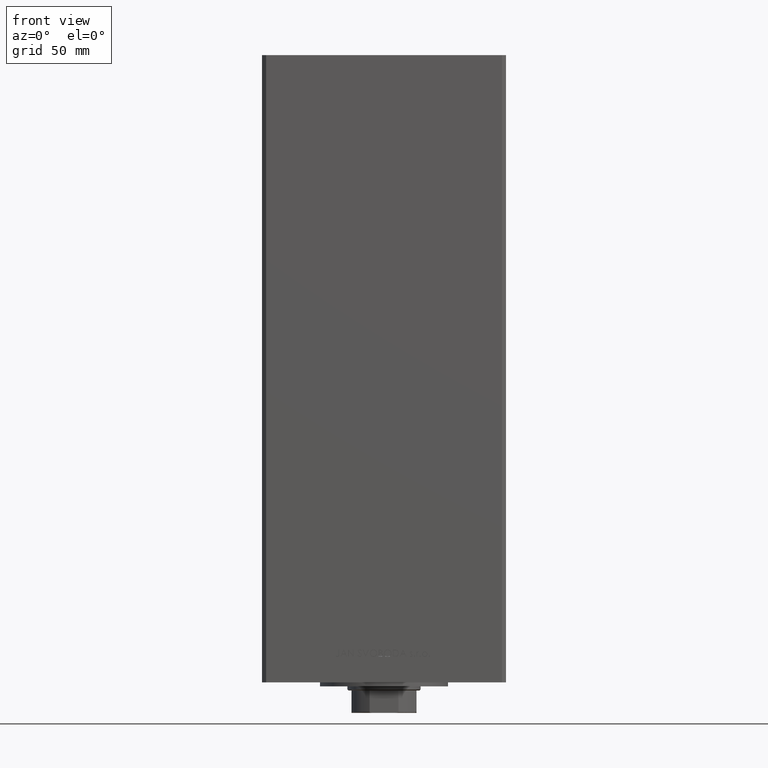
[diagram: clean part render]
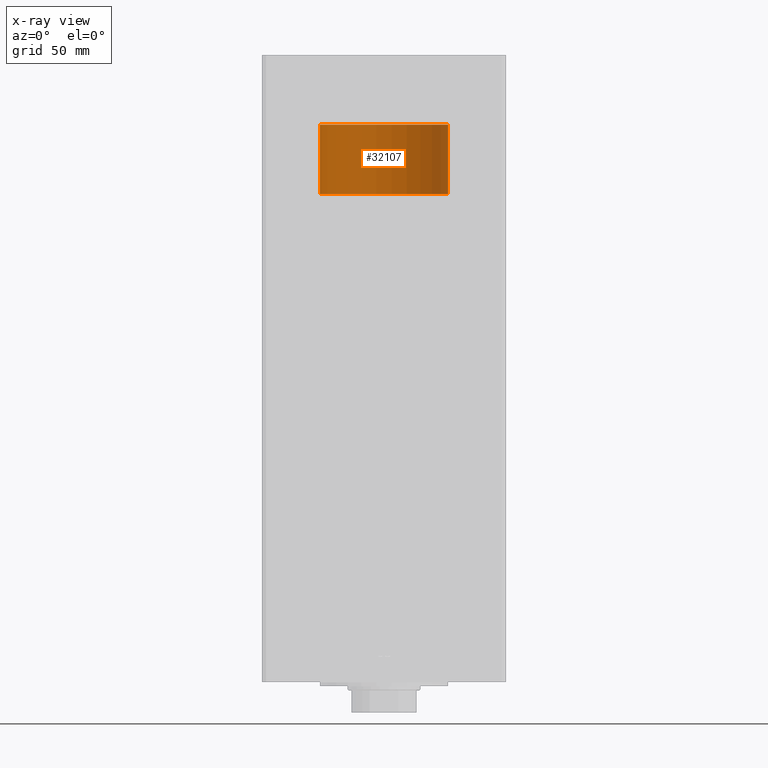
[diagram: x-ray — body ghosted, one internal face saturated and labeled with its STEP entity id]
A machine part, front view, then the same camera in x-ray: the body is ghosted and one INTERNAL B-rep face — a face not visible from any outside direction — is saturated and labeled: STEP entity #32107.
In plain terms, the highlighted cylindrical surface (partial cylindrical patch) has radius 31.5 mm, axis along (0, -0, 1).
Its self-contained STEP definition (entity closure, byte-faithful):
#17 = DIRECTION ( 'NONE',  ( 0.000000000000000000, 0.000000000000000000, 1.000000000000000000 ) ) ;
#168 = EDGE_CURVE ( 'NONE', #19314, #17075, #21505, .T. ) ;
#3654 = VECTOR ( 'NONE', #6594, 1000.000000000000000 ) ;
#4465 = CARTESIAN_POINT ( 'NONE',  ( 31.50000000000000000, 3.857637417314162689E-15, 34.25000000000000000 ) ) ;
#5681 = ORIENTED_EDGE ( 'NONE', *, *, #42288, .T. ) ;
#5821 = CARTESIAN_POINT ( 'NONE',  ( 0.000000000000000000, 0.000000000000000000, 34.25000000000000000 ) ) ;
#6594 = DIRECTION ( 'NONE',  ( -0.000000000000000000, -0.000000000000000000, -1.000000000000000000 ) ) ;
#7389 = DIRECTION ( 'NONE',  ( -1.000000000000000000, 0.000000000000000000, 0.000000000000000000 ) ) ;
#7428 = EDGE_LOOP ( 'NONE', ( #23861, #5681, #32925, #14934 ) ) ;
#7775 = AXIS2_PLACEMENT_3D ( 'NONE', #45180, #26274, #7389 ) ;
#11508 = LINE ( 'NONE', #23682, #38286 ) ;
#12441 = AXIS2_PLACEMENT_3D ( 'NONE', #19612, #17, #37535 ) ;
#14934 = ORIENTED_EDGE ( 'NONE', *, *, #168, .F. ) ;
#17075 = VERTEX_POINT ( 'NONE', #17686 ) ;
#17686 = CARTESIAN_POINT ( 'NONE',  ( -31.50000000000000000, 0.000000000000000000, 0.000000000000000000 ) ) ;
#18562 = CYLINDRICAL_SURFACE ( 'NONE', #7775, 31.50000000000000000 ) ;
#19314 = VERTEX_POINT ( 'NONE', #19529 ) ;
#19529 = CARTESIAN_POINT ( 'NONE',  ( -31.50000000000000000, 0.000000000000000000, 34.25000000000000000 ) ) ;
#19612 = CARTESIAN_POINT ( 'NONE',  ( 0.000000000000000000, 0.000000000000000000, 0.000000000000000000 ) ) ;
#21505 = LINE ( 'NONE', #28729, #3654 ) ;
#23682 = CARTESIAN_POINT ( 'NONE',  ( 31.50000000000000000, 3.857637417314162689E-15, 34.25000000000000000 ) ) ;
#23861 = ORIENTED_EDGE ( 'NONE', *, *, #48471, .F. ) ;
#24714 = DIRECTION ( 'NONE',  ( 1.000000000000000000, 0.000000000000000000, 0.000000000000000000 ) ) ;
#26274 = DIRECTION ( 'NONE',  ( -0.000000000000000000, -0.000000000000000000, -1.000000000000000000 ) ) ;
#26613 = VERTEX_POINT ( 'NONE', #4465 ) ;
#26620 = EDGE_CURVE ( 'NONE', #28529, #17075, #38641, .T. ) ;
#27624 = AXIS2_PLACEMENT_3D ( 'NONE', #5821, #43608, #24714 ) ;
#28529 = VERTEX_POINT ( 'NONE', #39083 ) ;
#28729 = CARTESIAN_POINT ( 'NONE',  ( -31.50000000000000000, 0.000000000000000000, 34.25000000000000000 ) ) ;
#32107 = ADVANCED_FACE ( 'NONE', ( #37465 ), #18562, .T. ) ;
#32925 = ORIENTED_EDGE ( 'NONE', *, *, #26620, .T. ) ;
#34625 = DIRECTION ( 'NONE',  ( -0.000000000000000000, -0.000000000000000000, -1.000000000000000000 ) ) ;
#37465 = FACE_OUTER_BOUND ( 'NONE', #7428, .T. ) ;
#37535 = DIRECTION ( 'NONE',  ( 1.000000000000000000, 0.000000000000000000, 0.000000000000000000 ) ) ;
#38286 = VECTOR ( 'NONE', #34625, 1000.000000000000000 ) ;
#38641 = CIRCLE ( 'NONE', #12441, 31.50000000000000000 ) ;
#39083 = CARTESIAN_POINT ( 'NONE',  ( 31.50000000000000000, 3.857637417314162689E-15, 0.000000000000000000 ) ) ;
#42288 = EDGE_CURVE ( 'NONE', #26613, #28529, #11508, .T. ) ;
#43608 = DIRECTION ( 'NONE',  ( 0.000000000000000000, 0.000000000000000000, 1.000000000000000000 ) ) ;
#45180 = CARTESIAN_POINT ( 'NONE',  ( 0.000000000000000000, 0.000000000000000000, 34.25000000000000000 ) ) ;
#48471 = EDGE_CURVE ( 'NONE', #26613, #19314, #49069, .T. ) ;
#49069 = CIRCLE ( 'NONE', #27624, 31.50000000000000000 ) ;